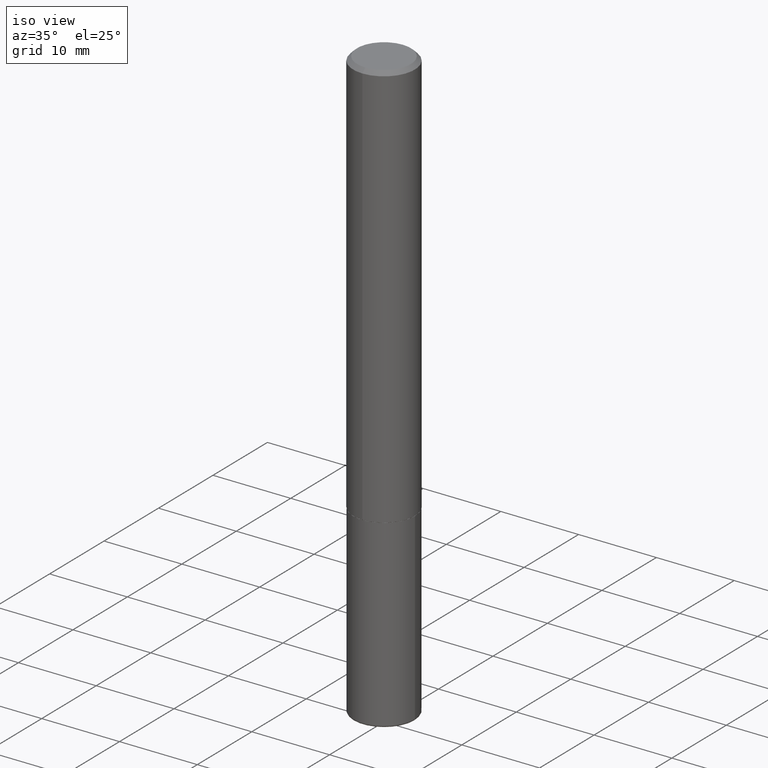
[diagram: clean part render]
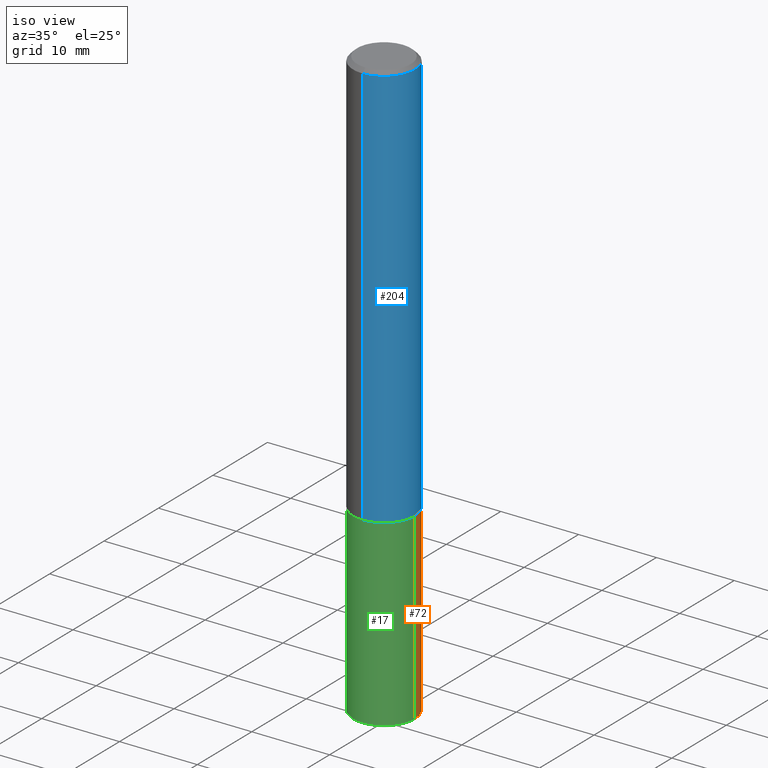
[diagram: same view with three faces highlighted in distinct colors, each labeled with its STEP entity id]
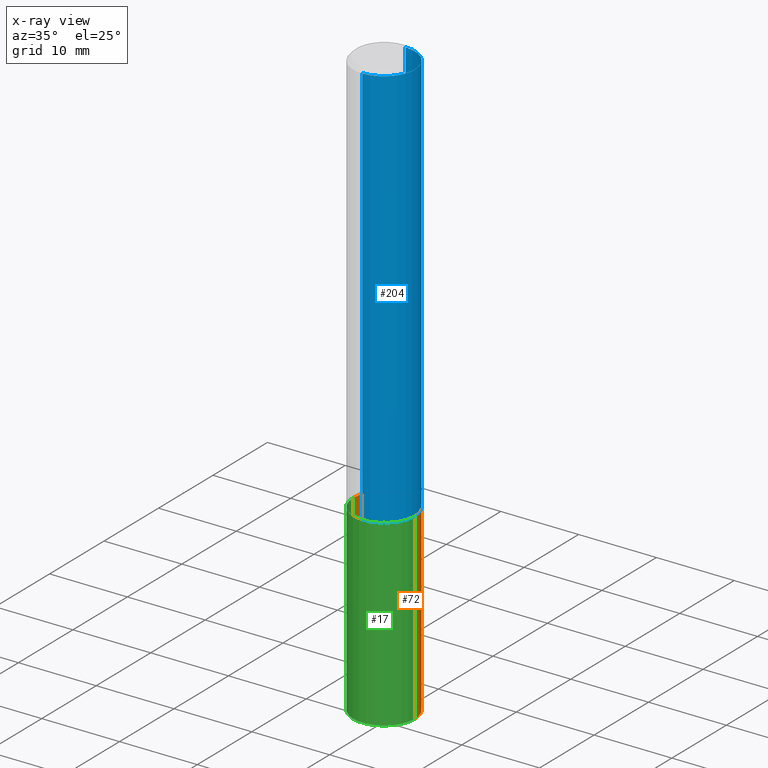
[diagram: x-ray of the same camera — body ghosted, the three highlighted faces saturated]
A machine part, iso view with three faces highlighted in distinct colors.
The next image is the same camera in x-ray (body ghosted, the three faces saturated) — at least one of them is partly hidden behind the body in this view.
Their STEP definitions:

[orange] entity #72 — the highlighted cylindrical surface (partial cylindrical patch) has radius 3.9688 mm, axis along (-0, 0, 1).
#3 = CARTESIAN_POINT ( 'NONE',  ( 0.1562500000000000278, -1.153061712152948940E-14, -2.990000000000000657 ) ) ;
#20 = CARTESIAN_POINT ( 'NONE',  ( -0.1562500000000000000, 1.110223024625156540E-15, -7.685836078523291160E-30 ) ) ;
#26 = DIRECTION ( 'NONE',  ( -2.445468806185136877E-29, 3.491481338843145188E-15, 1.000000000000000000 ) ) ;
#32 = VERTEX_POINT ( 'NONE', #3 ) ;
#47 = VECTOR ( 'NONE', #185, 39.37007874015748143 ) ;
#53 = CARTESIAN_POINT ( 'NONE',  ( -0.1562500000000000278, -9.329306178515851319E-15, -2.990000000000000657 ) ) ;
#58 = DIRECTION ( 'NONE',  ( 1.000000000000000000, -6.982962677686262766E-15, 0.000000000000000000 ) ) ;
#69 = ORIENTED_EDGE ( 'NONE', *, *, #160, .F. ) ;
#71 = VERTEX_POINT ( 'NONE', #321 ) ;
#72 = ADVANCED_FACE ( 'NONE', ( #262 ), #392, .T. ) ;
#96 = CIRCLE ( 'NONE', #293, 0.1562500000000000000 ) ;
#102 = EDGE_CURVE ( 'NONE', #167, #264, #314, .T. ) ;
#139 = AXIS2_PLACEMENT_3D ( 'NONE', #259, #310, #283 ) ;
#140 = AXIS2_PLACEMENT_3D ( 'NONE', #276, #248, #58 ) ;
#151 = CARTESIAN_POINT ( 'NONE',  ( 0.1562500000000000000, -1.091087918388479174E-15, 7.619026212181150377E-30 ) ) ;
#152 = DIRECTION ( 'NONE',  ( 1.000000000000000000, -6.982962677686269077E-15, 0.000000000000000000 ) ) ;
#160 = EDGE_CURVE ( 'NONE', #71, #264, #96, .T. ) ;
#167 = VERTEX_POINT ( 'NONE', #53 ) ;
#185 = DIRECTION ( 'NONE',  ( -2.445468806185136877E-29, 3.491481338843145188E-15, 1.000000000000000000 ) ) ;
#186 = CIRCLE ( 'NONE', #140, 0.1562500000000000000 ) ;
#191 = VECTOR ( 'NONE', #26, 39.37007874015748143 ) ;
#202 = ORIENTED_EDGE ( 'NONE', *, *, #296, .T. ) ;
#209 = DIRECTION ( 'NONE',  ( -2.445468806185136597E-29, 3.491481338843145583E-15, 1.000000000000000000 ) ) ;
#234 = ORIENTED_EDGE ( 'NONE', *, *, #102, .T. ) ;
#238 = EDGE_CURVE ( 'NONE', #32, #71, #380, .T. ) ;
#248 = DIRECTION ( 'NONE',  ( -2.445468806185136597E-29, 3.491481338843145583E-15, 1.000000000000000000 ) ) ;
#259 = CARTESIAN_POINT ( 'NONE',  ( 0.000000000000000000, 0.000000000000000000, 0.000000000000000000 ) ) ;
#262 = FACE_OUTER_BOUND ( 'NONE', #394, .T. ) ;
#264 = VERTEX_POINT ( 'NONE', #303 ) ;
#276 = CARTESIAN_POINT ( 'NONE',  ( 7.311951730493559366E-29, -1.043952920314100786E-14, -2.990000000000000657 ) ) ;
#281 = ORIENTED_EDGE ( 'NONE', *, *, #238, .F. ) ;
#283 = DIRECTION ( 'NONE',  ( 1.000000000000000000, -6.982962677686266711E-15, 4.876176775795936353E-29 ) ) ;
#293 = AXIS2_PLACEMENT_3D ( 'NONE', #378, #209, #152 ) ;
#296 = EDGE_CURVE ( 'NONE', #32, #167, #186, .T. ) ;
#303 = CARTESIAN_POINT ( 'NONE',  ( -0.1562500000000000000, -7.710131707627340889E-15, -2.062500000000000000 ) ) ;
#310 = DIRECTION ( 'NONE',  ( -2.445468806185136597E-29, 3.491481338843145583E-15, 1.000000000000000000 ) ) ;
#314 = LINE ( 'NONE', #20, #191 ) ;
#321 = CARTESIAN_POINT ( 'NONE',  ( 0.1562500000000000000, -8.292268179752468540E-15, -2.062500000000000000 ) ) ;
#378 = CARTESIAN_POINT ( 'NONE',  ( 5.043779412756844791E-29, -7.201180261363988578E-15, -2.062500000000000000 ) ) ;
#380 = LINE ( 'NONE', #151, #47 ) ;
#392 = CYLINDRICAL_SURFACE ( 'NONE', #139, 0.1562500000000000000 ) ;
#394 = EDGE_LOOP ( 'NONE', ( #202, #234, #69, #281 ) ) ;

[blue] entity #204 — the highlighted cylindrical surface (partial cylindrical patch) has radius 3.9688 mm, axis along (-0, 0, 1).
#12 = ORIENTED_EDGE ( 'NONE', *, *, #67, .F. ) ;
#37 = ORIENTED_EDGE ( 'NONE', *, *, #229, .F. ) ;
#39 = CARTESIAN_POINT ( 'NONE',  ( 0.000000000000000000, 0.000000000000000000, 0.000000000000000000 ) ) ;
#63 = LINE ( 'NONE', #193, #64 ) ;
#64 = VECTOR ( 'NONE', #291, 39.37007874015748143 ) ;
#66 = DIRECTION ( 'NONE',  ( -6.982962677686265922E-15, -1.000000000000000000, 3.491900563592035238E-15 ) ) ;
#67 = EDGE_CURVE ( 'NONE', #301, #108, #63, .T. ) ;
#86 = LINE ( 'NONE', #277, #385 ) ;
#93 = FACE_OUTER_BOUND ( 'NONE', #368, .T. ) ;
#103 = CARTESIAN_POINT ( 'NONE',  ( 4.890352126215269679E-31, -6.983801127184080238E-17, -0.02000000000000003511 ) ) ;
#106 = AXIS2_PLACEMENT_3D ( 'NONE', #194, #162, #129 ) ;
#108 = VERTEX_POINT ( 'NONE', #285 ) ;
#112 = ORIENTED_EDGE ( 'NONE', *, *, #214, .T. ) ;
#129 = DIRECTION ( 'NONE',  ( -6.982962677686265922E-15, -1.000000000000000000, 3.496765431890250609E-15 ) ) ;
#134 = AXIS2_PLACEMENT_3D ( 'NONE', #103, #210, #411 ) ;
#142 = VERTEX_POINT ( 'NONE', #290 ) ;
#162 = DIRECTION ( 'NONE',  ( -2.445176063107630933E-29, 3.491900563592034843E-15, 1.000000000000000000 ) ) ;
#168 = EDGE_CURVE ( 'NONE', #361, #142, #86, .T. ) ;
#171 = ORIENTED_EDGE ( 'NONE', *, *, #168, .T. ) ;
#193 = CARTESIAN_POINT ( 'NONE',  ( -1.091087918388479962E-15, -0.1562500000000001388, 5.456094630612559989E-16 ) ) ;
#194 = CARTESIAN_POINT ( 'NONE',  ( 5.040730454096381281E-29, -7.198553011844980434E-15, -2.061500000000000110 ) ) ;
#204 = ADVANCED_FACE ( 'NONE', ( #93 ), #326, .T. ) ;
#210 = DIRECTION ( 'NONE',  ( -2.445176063107630933E-29, 3.491900563592034843E-15, 1.000000000000000000 ) ) ;
#211 = CIRCLE ( 'NONE', #134, 0.1562500000000000000 ) ;
#214 = EDGE_CURVE ( 'NONE', #301, #361, #364, .T. ) ;
#229 = EDGE_CURVE ( 'NONE', #108, #142, #211, .T. ) ;
#277 = CARTESIAN_POINT ( 'NONE',  ( 1.110223024625157329E-15, 0.1562500000000001388, -5.456094630612559989E-16 ) ) ;
#285 = CARTESIAN_POINT ( 'NONE',  ( -1.071952812151801215E-15, -0.1562500000000000833, -0.01999999999999948694 ) ) ;
#287 = AXIS2_PLACEMENT_3D ( 'NONE', #39, #354, #66 ) ;
#290 = CARTESIAN_POINT ( 'NONE',  ( 1.091087918388479568E-15, 0.1562499999999999445, -0.02000000000000057981 ) ) ;
#291 = DIRECTION ( 'NONE',  ( -2.445176063107631214E-29, 3.491900563592034843E-15, 1.000000000000000000 ) ) ;
#301 = VERTEX_POINT ( 'NONE', #373 ) ;
#307 = CARTESIAN_POINT ( 'NONE',  ( 1.110223024625183362E-15, 0.1562499999999930611, -2.061500000000000554 ) ) ;
#326 = CYLINDRICAL_SURFACE ( 'NONE', #287, 0.1562500000000001388 ) ;
#354 = DIRECTION ( 'NONE',  ( -2.445176063107630933E-29, 3.491900563592034843E-15, 1.000000000000000000 ) ) ;
#361 = VERTEX_POINT ( 'NONE', #307 ) ;
#364 = CIRCLE ( 'NONE', #106, 0.1562500000000002776 ) ;
#368 = EDGE_LOOP ( 'NONE', ( #112, #171, #37, #12 ) ) ;
#373 = CARTESIAN_POINT ( 'NONE',  ( -1.091087918388430659E-15, -0.1562500000000074940, -2.061499999999999666 ) ) ;
#385 = VECTOR ( 'NONE', #408, 39.37007874015748143 ) ;
#408 = DIRECTION ( 'NONE',  ( -2.445176063107631214E-29, 3.491900563592034843E-15, 1.000000000000000000 ) ) ;
#411 = DIRECTION ( 'NONE',  ( -6.982962677686265133E-15, -1.000000000000000000, 3.496765431890256920E-15 ) ) ;

[green] entity #17 — the highlighted cylindrical surface (partial cylindrical patch) has radius 3.9688 mm, axis along (-0, 0, 1).
#3 = CARTESIAN_POINT ( 'NONE',  ( 0.1562500000000000278, -1.153061712152948940E-14, -2.990000000000000657 ) ) ;
#17 = ADVANCED_FACE ( 'NONE', ( #128 ), #159, .T. ) ;
#20 = CARTESIAN_POINT ( 'NONE',  ( -0.1562500000000000000, 1.110223024625156540E-15, -7.685836078523291160E-30 ) ) ;
#26 = DIRECTION ( 'NONE',  ( -2.445468806185136877E-29, 3.491481338843145188E-15, 1.000000000000000000 ) ) ;
#29 = DIRECTION ( 'NONE',  ( 1.000000000000000000, -6.982962677686269077E-15, 0.000000000000000000 ) ) ;
#32 = VERTEX_POINT ( 'NONE', #3 ) ;
#33 = DIRECTION ( 'NONE',  ( 1.000000000000000000, -6.982962677686262766E-15, 0.000000000000000000 ) ) ;
#47 = VECTOR ( 'NONE', #185, 39.37007874015748143 ) ;
#49 = AXIS2_PLACEMENT_3D ( 'NONE', #190, #161, #133 ) ;
#53 = CARTESIAN_POINT ( 'NONE',  ( -0.1562500000000000278, -9.329306178515851319E-15, -2.990000000000000657 ) ) ;
#59 = EDGE_CURVE ( 'NONE', #264, #71, #89, .T. ) ;
#68 = EDGE_LOOP ( 'NONE', ( #329, #182, #163, #212 ) ) ;
#71 = VERTEX_POINT ( 'NONE', #321 ) ;
#89 = CIRCLE ( 'NONE', #260, 0.1562500000000000000 ) ;
#102 = EDGE_CURVE ( 'NONE', #167, #264, #314, .T. ) ;
#128 = FACE_OUTER_BOUND ( 'NONE', #68, .T. ) ;
#133 = DIRECTION ( 'NONE',  ( 1.000000000000000000, -6.982962677686266711E-15, 4.876176775795936353E-29 ) ) ;
#136 = EDGE_CURVE ( 'NONE', #167, #32, #371, .T. ) ;
#151 = CARTESIAN_POINT ( 'NONE',  ( 0.1562500000000000000, -1.091087918388479174E-15, 7.619026212181150377E-30 ) ) ;
#159 = CYLINDRICAL_SURFACE ( 'NONE', #49, 0.1562500000000000000 ) ;
#161 = DIRECTION ( 'NONE',  ( -2.445468806185136597E-29, 3.491481338843145583E-15, 1.000000000000000000 ) ) ;
#163 = ORIENTED_EDGE ( 'NONE', *, *, #238, .T. ) ;
#164 = CARTESIAN_POINT ( 'NONE',  ( 7.311951730493559366E-29, -1.043952920314100786E-14, -2.990000000000000657 ) ) ;
#167 = VERTEX_POINT ( 'NONE', #53 ) ;
#182 = ORIENTED_EDGE ( 'NONE', *, *, #136, .T. ) ;
#185 = DIRECTION ( 'NONE',  ( -2.445468806185136877E-29, 3.491481338843145188E-15, 1.000000000000000000 ) ) ;
#190 = CARTESIAN_POINT ( 'NONE',  ( 0.000000000000000000, 0.000000000000000000, 0.000000000000000000 ) ) ;
#191 = VECTOR ( 'NONE', #26, 39.37007874015748143 ) ;
#212 = ORIENTED_EDGE ( 'NONE', *, *, #59, .F. ) ;
#237 = AXIS2_PLACEMENT_3D ( 'NONE', #164, #324, #33 ) ;
#238 = EDGE_CURVE ( 'NONE', #32, #71, #380, .T. ) ;
#260 = AXIS2_PLACEMENT_3D ( 'NONE', #351, #319, #29 ) ;
#264 = VERTEX_POINT ( 'NONE', #303 ) ;
#303 = CARTESIAN_POINT ( 'NONE',  ( -0.1562500000000000000, -7.710131707627340889E-15, -2.062500000000000000 ) ) ;
#314 = LINE ( 'NONE', #20, #191 ) ;
#319 = DIRECTION ( 'NONE',  ( -2.445468806185136597E-29, 3.491481338843145583E-15, 1.000000000000000000 ) ) ;
#321 = CARTESIAN_POINT ( 'NONE',  ( 0.1562500000000000000, -8.292268179752468540E-15, -2.062500000000000000 ) ) ;
#324 = DIRECTION ( 'NONE',  ( -2.445468806185136597E-29, 3.491481338843145583E-15, 1.000000000000000000 ) ) ;
#329 = ORIENTED_EDGE ( 'NONE', *, *, #102, .F. ) ;
#351 = CARTESIAN_POINT ( 'NONE',  ( 5.043779412756844791E-29, -7.201180261363988578E-15, -2.062500000000000000 ) ) ;
#371 = CIRCLE ( 'NONE', #237, 0.1562500000000000000 ) ;
#380 = LINE ( 'NONE', #151, #47 ) ;